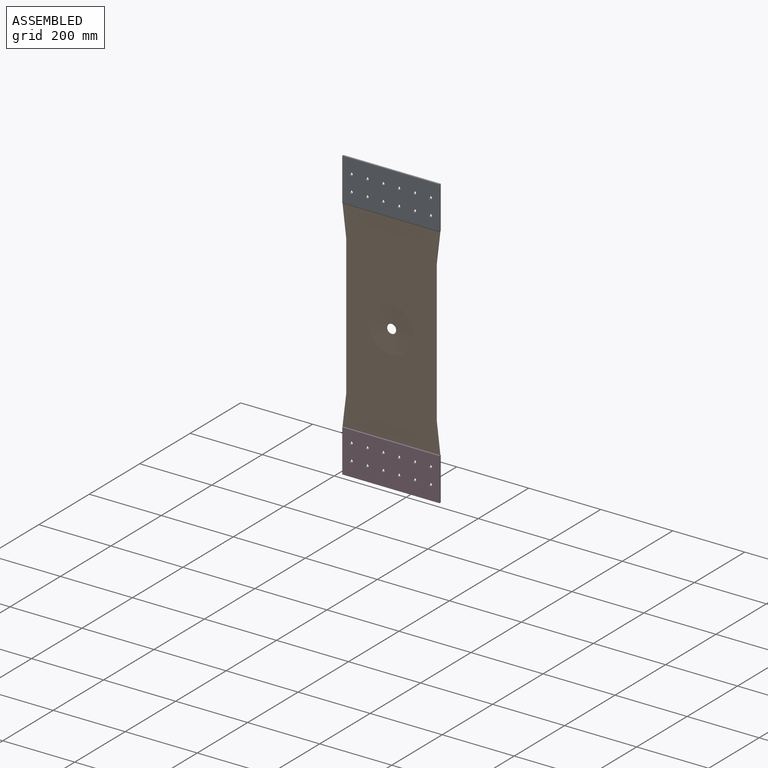
[diagram: assembled view]
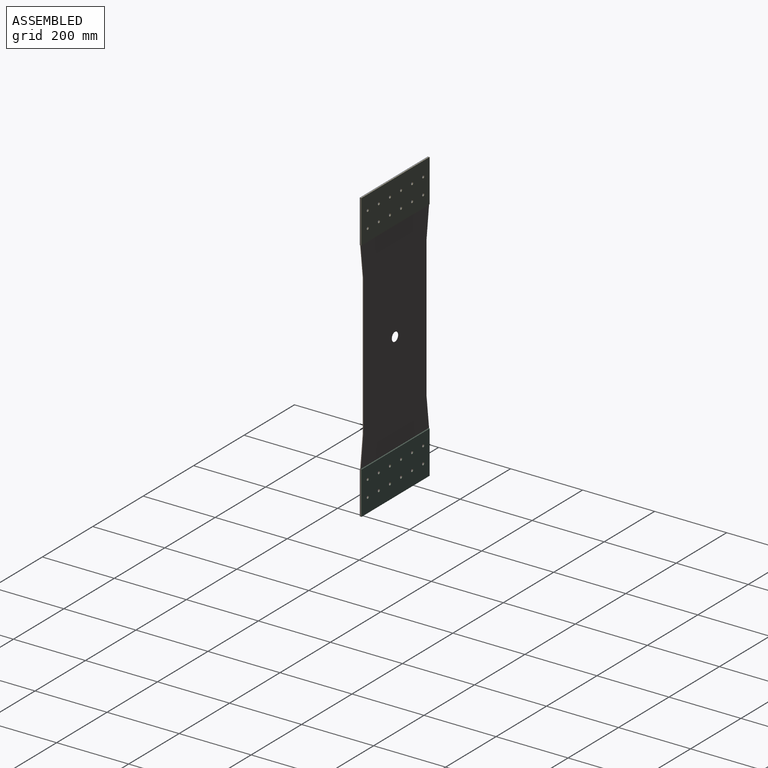
[diagram: assembled view, second angle]
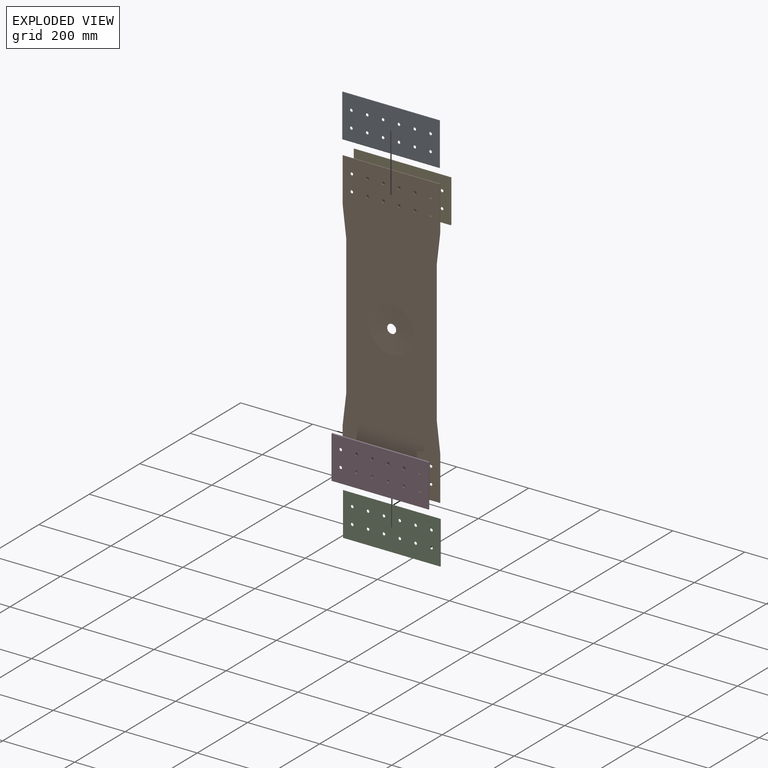
[diagram: exploded view]
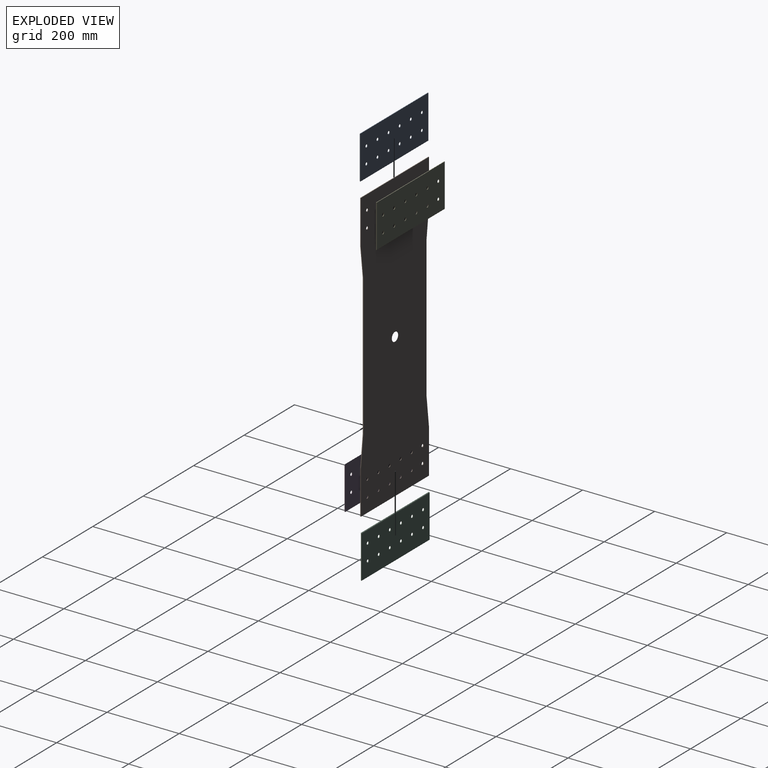
[diagram: exploded view, second angle]
ASSEMBLY  parts=5 mates=12
PART A: 18 faces, bbox 270x120x1.6 mm
  f0: plane 270x1.6mm, normal (0,-0.71,0.71), area 610.9mm2, adj f1,f3,f4,f5
  f1: plane 270x120mm, normal (0,0,-1), area 31796.8mm2, adj f0,f2,f4,f5,f6,f7,f8,f9
  f2: plane 270x1.6mm, normal (0,1,0), area 432mm2, adj f1,f3,f4,f5
  f3: plane 270x118.4mm, normal (0,0,1), area 31364.8mm2, adj f0,f2,f4,f5,f6,f7,f8,f9
  f4: plane 120x1.6mm, normal (1,0,0), area 190.7mm2, adj f0,f1,f2,f3
  f5: plane 120x1.6mm, normal (-1,0,0), area 190.7mm2, adj f0,f1,f2,f3
  f6: cylinder r=4mm len=8mm, axis (0,0,1), area 40.2mm2, adj f1,f3
  f7: cylinder r=4mm len=8mm, axis (0,0,1), area 40.2mm2, adj f1,f3
  f8: cylinder r=4mm len=8mm, axis (0,0,1), area 40.2mm2, adj f1,f3
  f9: cylinder r=4mm len=8mm, axis (0,0,1), area 40.2mm2, adj f1,f3
  f10: cylinder r=4mm len=8mm, axis (0,0,1), area 40.2mm2, adj f1,f3
  f11: cylinder r=4mm len=8mm, axis (0,0,1), area 40.2mm2, adj f1,f3
  f12: cylinder r=4mm len=8mm, axis (0,0,1), area 40.2mm2, adj f1,f3
  f13: cylinder r=4mm len=8mm, axis (0,0,1), area 40.2mm2, adj f1,f3
  f14: cylinder r=4mm len=8mm, axis (0,0,1), area 40.2mm2, adj f1,f3
  f15: cylinder r=4mm len=8mm, axis (0,0,1), area 40.2mm2, adj f1,f3
  f16: cylinder r=4mm len=8mm, axis (0,0,1), area 40.2mm2, adj f1,f3
  f17: cylinder r=4mm len=8mm, axis (0,0,1), area 40.2mm2, adj f1,f3
PART B: 47 faces, bbox 270x1.8x800 mm
  f0: plane 800x270mm, normal (0,-1,0), area 192443.4mm2, adj f1,f2,f3,f4,f5,f6,f7,f8
  f1: cylinder r=30mm len=3.58mm, axis (0,1,0), area 6.5mm2, adj f0,f2,f20,f21
  f2: plane 79.64x9.57mm, normal (0.99,0,-0.12), area 144.4mm2, adj f0,f1,f3,f21
  f3: cylinder r=30mm len=3.58mm, axis (0,1,0), area 6.5mm2, adj f0,f2,f4,f21
  f4: plane 120x1.8mm, normal (1,0,0), area 216mm2, adj f0,f3,f5,f21
  f5: plane 270x1.8mm, normal (0,0,1), area 486mm2, adj f0,f4,f6,f21
  f6: plane 120x1.8mm, normal (-1,0,0), area 216mm2, adj f0,f5,f7,f21
  f7: cylinder r=30mm len=3.58mm, axis (0,1,0), area 6.5mm2, adj f0,f6,f8,f21
  f8: plane 79.64x9.57mm, normal (-0.99,0,-0.12), area 144.4mm2, adj f0,f7,f9,f21
  f9: cylinder r=30mm len=3.58mm, axis (0,1,0), area 6.5mm2, adj f0,f8,f10,f21
  f10: plane 386.41x1.8mm, normal (-1,0,0), area 695.5mm2, adj f0,f9,f11,f21
  f11: cylinder r=30mm len=3.58mm, axis (0,1,0), area 6.5mm2, adj f0,f10,f12,f21
  f12: plane 79.64x9.57mm, normal (-0.99,0,0.12), area 144.4mm2, adj f0,f11,f13,f21
  f13: cylinder r=30mm len=3.58mm, axis (0,1,0), area 6.5mm2, adj f0,f12,f14,f21
  f14: plane 120x1.8mm, normal (-1,0,0), area 216mm2, adj f0,f13,f15,f21
  f15: plane 270x1.8mm, normal (0,0,-1), area 486mm2, adj f0,f14,f16,f21
  f16: plane 120x1.8mm, normal (1,0,0), area 216mm2, adj f0,f15,f17,f21
  f17: cylinder r=30mm len=3.58mm, axis (0,1,0), area 6.5mm2, adj f0,f16,f18,f21
  f18: plane 79.64x9.57mm, normal (0.99,0,0.12), area 144.4mm2, adj f0,f17,f19,f21
  f19: cylinder r=30mm len=3.58mm, axis (0,1,0), area 6.5mm2, adj f0,f18,f20,f21
  f20: plane 386.41x1.8mm, normal (1,0,0), area 695.5mm2, adj f0,f1,f19,f21
  f21: plane 800x270mm, normal (0,1,0), area 204838.7mm2, adj f1,f2,f3,f4,f5,f6,f7,f8
  f22: cylinder r=4mm len=8mm, axis (0,-1,0), area 45.2mm2, adj f0,f21
  f23: cylinder r=4mm len=8mm, axis (0,-1,0), area 45.2mm2, adj f0,f21
  f24: cylinder r=4mm len=8mm, axis (0,-1,0), area 45.2mm2, adj f0,f21
  f25: cylinder r=4mm len=8mm, axis (0,-1,0), area 45.2mm2, adj f0,f21
  f26: cylinder r=4mm len=8mm, axis (0,-1,0), area 45.2mm2, adj f0,f21
  f27: cylinder r=4mm len=8mm, axis (0,-1,0), area 45.2mm2, adj f0,f21
  f28: cylinder r=4mm len=8mm, axis (0,-1,0), area 45.2mm2, adj f0,f21
  f29: cylinder r=4mm len=8mm, axis (0,-1,0), area 45.2mm2, adj f0,f21
  f30: cylinder r=4mm len=8mm, axis (0,-1,0), area 45.2mm2, adj f0,f21
  f31: cylinder r=4mm len=8mm, axis (0,-1,0), area 45.2mm2, adj f0,f21
  f32: cylinder r=4mm len=8mm, axis (0,-1,0), area 45.2mm2, adj f0,f21
  f33: cylinder r=4mm len=8mm, axis (0,-1,0), area 45.2mm2, adj f0,f21
  f34: cylinder r=4mm len=8mm, axis (0,-1,0), area 45.2mm2, adj f0,f21
  f35: cylinder r=4mm len=8mm, axis (0,-1,0), area 45.2mm2, adj f0,f21
  f36: cylinder r=4mm len=8mm, axis (0,-1,0), area 45.2mm2, adj f0,f21
  f37: cylinder r=4mm len=8mm, axis (0,-1,0), area 45.2mm2, adj f0,f21
  f38: cylinder r=4mm len=8mm, axis (0,-1,0), area 45.2mm2, adj f0,f21
  f39: cylinder r=4mm len=8mm, axis (0,-1,0), area 45.2mm2, adj f0,f21
  f40: cylinder r=4mm len=8mm, axis (0,-1,0), area 45.2mm2, adj f0,f21
  f41: cylinder r=4mm len=8mm, axis (0,-1,0), area 45.2mm2, adj f0,f21
  f42: cylinder r=4mm len=8mm, axis (0,-1,0), area 45.2mm2, adj f0,f21
  f43: cylinder r=4mm len=8mm, axis (0,-1,0), area 45.2mm2, adj f0,f21
  f44: cylinder r=4mm len=8mm, axis (0,-1,0), area 45.2mm2, adj f0,f21
  f45: cylinder r=4mm len=8mm, axis (0,-1,0), area 45.2mm2, adj f0,f21
  f46: cone r=64.05mm half-angle=88deg, axis (0,-1,0), area 12402.9mm2, adj f0,f21
PART C: same geometry as A
PART D: same geometry as A
PART E: same geometry as A
PLACE A rot(axis=(1,0,0),90deg) t=(-350.92,106.47,628.2)mm
PLACE B t=(-350.92,108.27,-51.8)mm fixed
PLACE C rot(axis=(-1,0,0),90deg) t=(-350.92,108.27,68.2)mm
PLACE D rot(axis=(0,-0.71,0.71),180deg) t=(-80.92,106.47,68.2)mm
PLACE E rot(axis=(0,0.71,0.71),180deg) t=(-80.92,108.27,628.2)mm
MATE planar E.f1 <-> B.f46  axis (0,-1,0) through (-215.92,108.27,688.24)mm
MATE planar B.f5 <-> A.f2  axis (0,0,1) through (-215.92,107.37,748.2)mm
MATE planar C.f2 <-> B.f15  axis (0,0,-1) through (-215.92,109.07,-51.8)mm
MATE planar D.f1 <-> B.f17  axis (0,1,0) through (-215.92,106.47,8.15)mm
MATE planar C.f4 <-> B.f16  axis (1,0,0) through (-80.92,109.07,7.8)mm
MATE planar B.f16 <-> D.f5  axis (1,0,0) through (-80.92,107.37,8.2)mm
MATE planar A.f4 <-> B.f4  axis (1,0,0) through (-80.92,105.67,688.6)mm
MATE planar E.f5 <-> B.f4  axis (1,0,0) through (-80.92,109.07,688.6)mm
MATE planar B.f46 <-> A.f9  axis (0,-1,0) through (-215.92,106.47,348.2)mm
MATE planar B.f15 <-> D.f2  axis (0,0,-1) through (-215.92,107.37,-51.8)mm
MATE planar C.f1 <-> B.f13  axis (0,-1,0) through (-215.92,108.27,8.15)mm
MATE planar E.f2 <-> B.f5  axis (0,0,1) through (-215.92,109.07,748.2)mm
